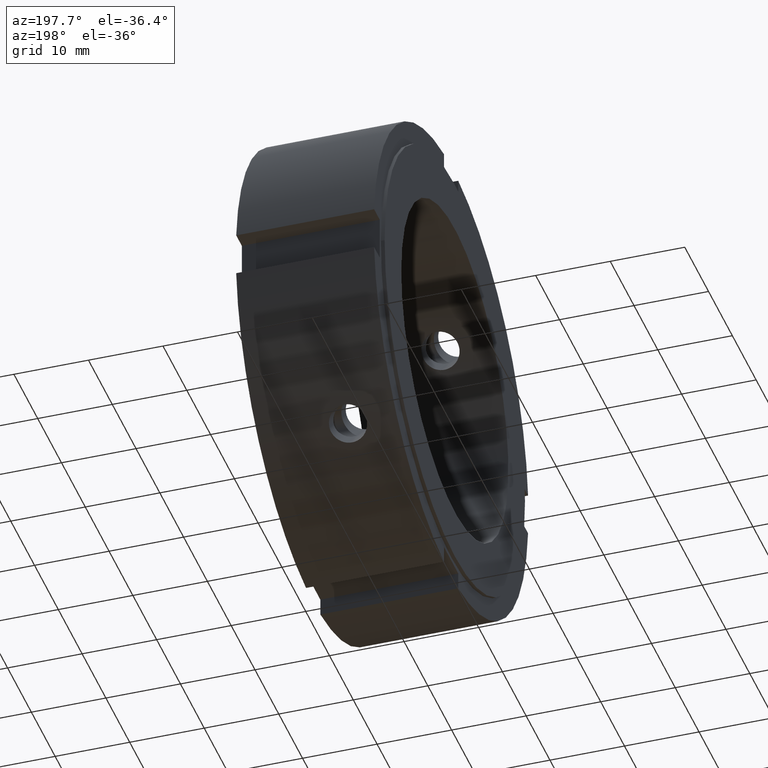
[diagram: clean part render]
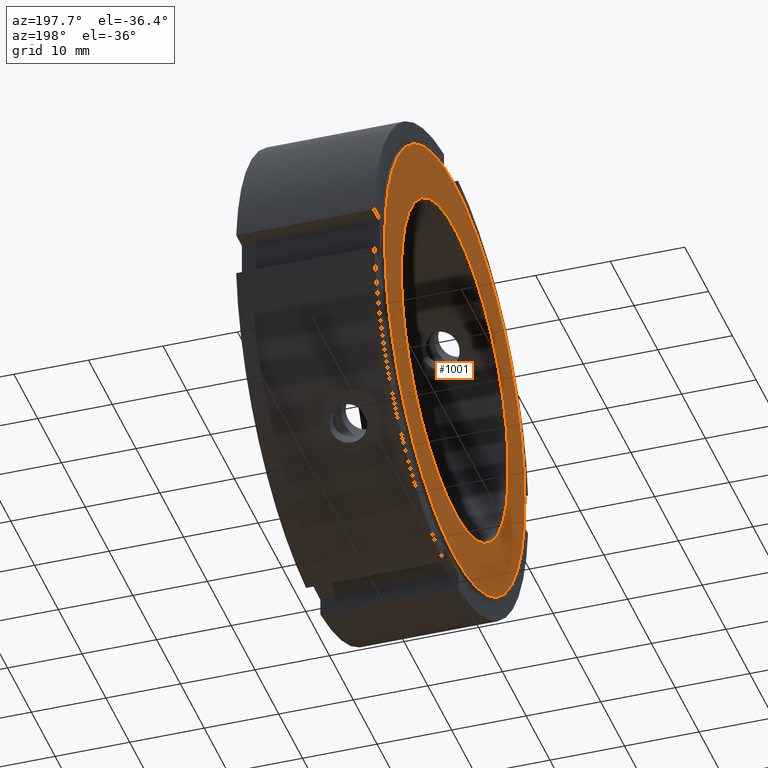
[diagram: same view with one face highlighted and labeled with its STEP entity id]
A machine part, auxiliary view. The second image highlights one B-rep face of the part: STEP entity #1001.
In plain terms, the highlighted planar face has unit normal (-1, 0, 0).
Its self-contained STEP definition (entity closure, byte-faithful):
#974=CARTESIAN_POINT('',(-7.438286E-015,26.0,0.0));
#975=DIRECTION('',(-1.0,0.0,0.0));
#976=DIRECTION('',(0.0,0.0,1.0));
#977=AXIS2_PLACEMENT_3D('',#974,#975,#976);
#978=PLANE('',#977);
#979=CARTESIAN_POINT('',(-8.881784E-015,29.500000000000000,0.0));
#980=VERTEX_POINT('',#979);
#981=CARTESIAN_POINT('',(-8.881784E-015,0.0,0.0));
#982=DIRECTION('',(1.0,0.0,0.0));
#983=DIRECTION('',(0.0,1.0,0.0));
#984=AXIS2_PLACEMENT_3D('',#981,#982,#983);
#985=CIRCLE('',#984,29.500000000000000);
#986=EDGE_CURVE('',#980,#980,#985,.T.);
#987=ORIENTED_EDGE('',*,*,#986,.F.);
#988=EDGE_LOOP('',(#987));
#989=FACE_OUTER_BOUND('',#988,.T.);
#990=CARTESIAN_POINT('',(-5.994788E-015,22.500000000000000,0.0));
#991=VERTEX_POINT('',#990);
#992=CARTESIAN_POINT('',(-5.993470E-015,0.0,0.0));
#993=DIRECTION('',(1.0,0.0,0.0));
#994=DIRECTION('',(0.0,1.0,0.0));
#995=AXIS2_PLACEMENT_3D('',#992,#993,#994);
#996=CIRCLE('',#995,22.500000000000000);
#997=EDGE_CURVE('',#991,#991,#996,.T.);
#998=ORIENTED_EDGE('',*,*,#997,.T.);
#999=EDGE_LOOP('',(#998));
#1000=FACE_BOUND('',#999,.T.);
#1001=ADVANCED_FACE('',(#989,#1000),#978,.T.);